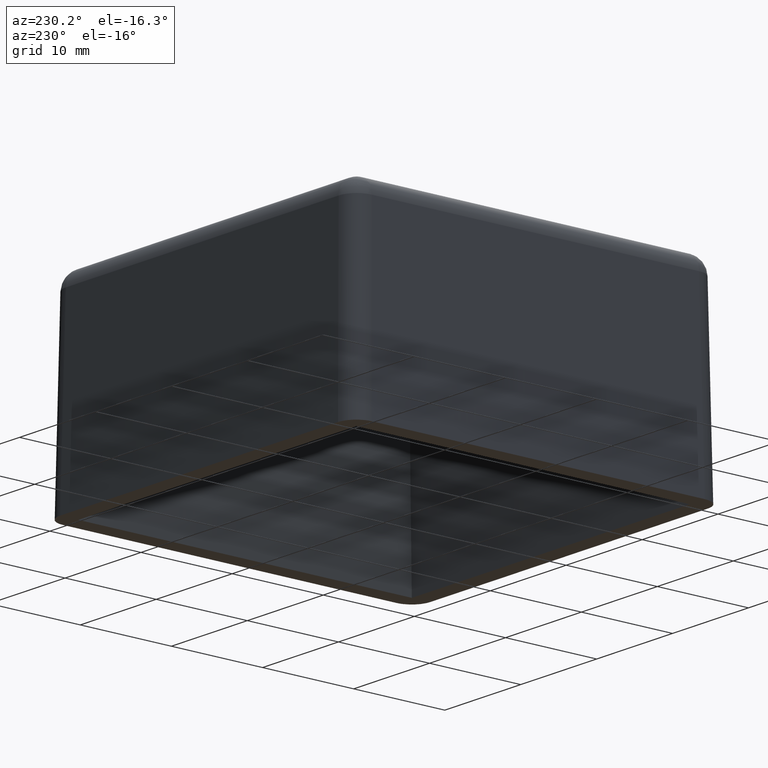
[diagram: clean part render]
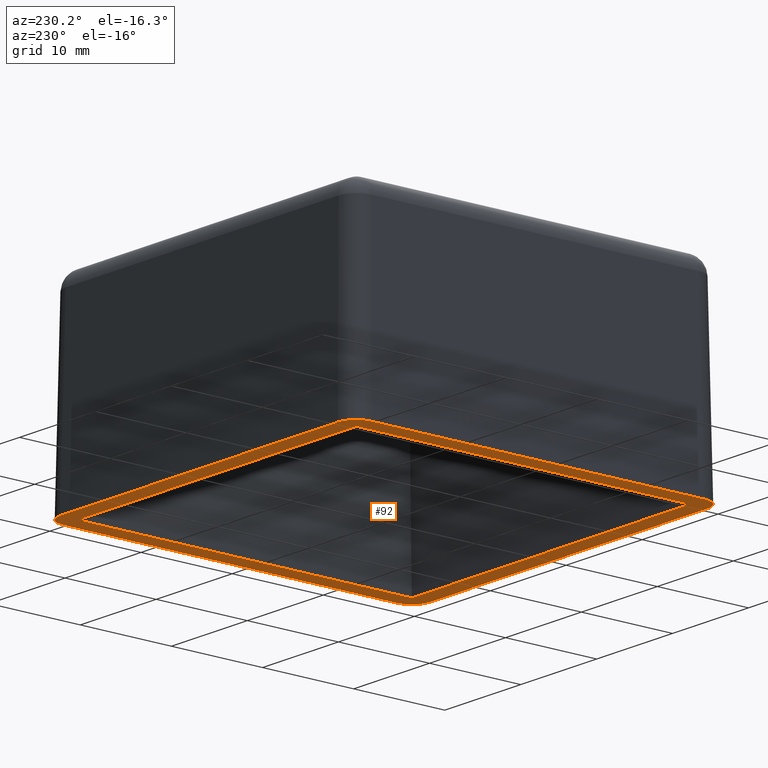
[diagram: same view with one face highlighted and labeled with its STEP entity id]
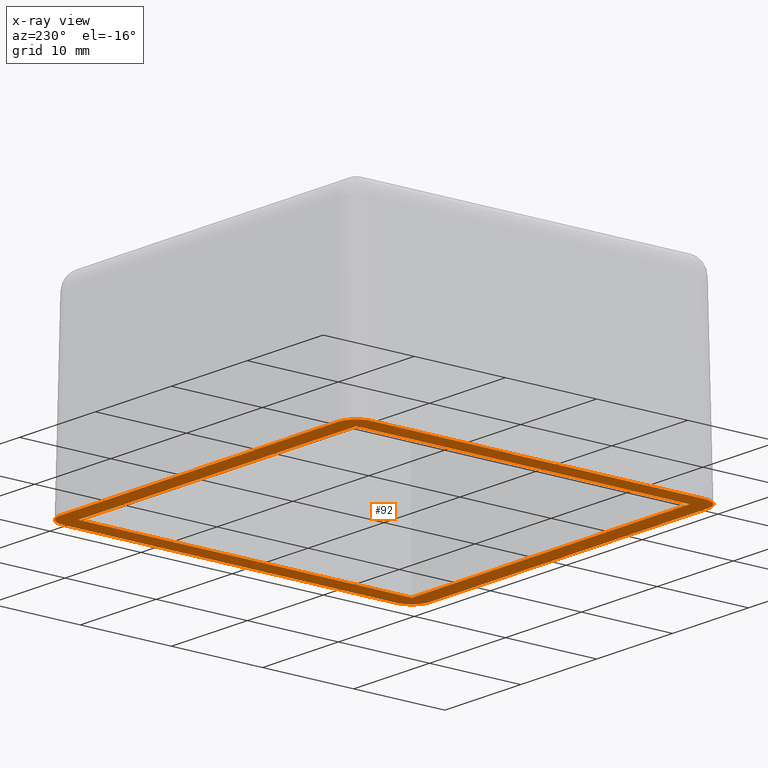
[diagram: x-ray of the same camera — body ghosted, the highlighted face saturated]
A machine part, auxiliary view. The second image highlights one B-rep face of the part: STEP entity #92.
The next image is the same camera in x-ray: the body ghosted, the highlighted face saturated — about 0% of this face is hidden behind the body in this view.
In plain terms, the highlighted planar face has unit normal (0, 0, 1).
Its self-contained STEP definition (entity closure, byte-faithful):
#92 = ADVANCED_FACE( '', ( #204, #205 ), #206, .F. );
#204 = FACE_BOUND( '', #389, .T. );
#205 = FACE_OUTER_BOUND( '', #390, .T. );
#206 = PLANE( '', #391 );
#389 = EDGE_LOOP( '', ( #726, #727, #728, #729 ) );
#390 = EDGE_LOOP( '', ( #730, #731, #732, #733, #734, #735, #736, #737 ) );
#391 = AXIS2_PLACEMENT_3D( '', #738, #739, #740 );
#726 = ORIENTED_EDGE( '', *, *, #1364, .T. );
#727 = ORIENTED_EDGE( '', *, *, #1365, .T. );
#728 = ORIENTED_EDGE( '', *, *, #1366, .T. );
#729 = ORIENTED_EDGE( '', *, *, #1367, .T. );
#730 = ORIENTED_EDGE( '', *, *, #1327, .F. );
#731 = ORIENTED_EDGE( '', *, *, #1349, .T. );
#732 = ORIENTED_EDGE( '', *, *, #1352, .F. );
#733 = ORIENTED_EDGE( '', *, *, #1361, .T. );
#734 = ORIENTED_EDGE( '', *, *, #1363, .F. );
#735 = ORIENTED_EDGE( '', *, *, #1368, .T. );
#736 = ORIENTED_EDGE( '', *, *, #1369, .F. );
#737 = ORIENTED_EDGE( '', *, *, #1370, .T. );
#738 = CARTESIAN_POINT( '', ( -20.3000000000000, -20.3000000000000, 0.000000000000000 ) );
#739 = DIRECTION( '', ( 0.000000000000000, 0.000000000000000, 1.00000000000000 ) );
#740 = DIRECTION( '', ( 0.000000000000000, -1.00000000000000, 0.000000000000000 ) );
#1327 = EDGE_CURVE( '', #1593, #1588, #1595, .F. );
#1349 = EDGE_CURVE( '', #1593, #1629, #1631, .F. );
#1352 = EDGE_CURVE( '', #1634, #1629, #1636, .F. );
#1361 = EDGE_CURVE( '', #1634, #1646, #1648, .F. );
#1363 = EDGE_CURVE( '', #1649, #1646, #1651, .F. );
#1364 = EDGE_CURVE( '', #1652, #1653, #1654, .F. );
#1365 = EDGE_CURVE( '', #1653, #1655, #1656, .F. );
#1366 = EDGE_CURVE( '', #1655, #1657, #1658, .F. );
#1367 = EDGE_CURVE( '', #1657, #1652, #1659, .F. );
#1368 = EDGE_CURVE( '', #1649, #1660, #1661, .F. );
#1369 = EDGE_CURVE( '', #1662, #1660, #1663, .F. );
#1370 = EDGE_CURVE( '', #1662, #1588, #1664, .F. );
#1588 = VERTEX_POINT( '', #2058 );
#1593 = VERTEX_POINT( '', #2065 );
#1595 = LINE( '', #2068, #2069 );
#1629 = VERTEX_POINT( '', #2173 );
#1631 = ELLIPSE( '', #2176, 2.00060926578210, 2.00000000000000 );
#1634 = VERTEX_POINT( '', #2180 );
#1636 = LINE( '', #2183, #2184 );
#1646 = VERTEX_POINT( '', #2195 );
#1648 = ELLIPSE( '', #2198, 2.00060926578210, 2.00000000000000 );
#1649 = VERTEX_POINT( '', #2199 );
#1651 = LINE( '', #2202, #2203 );
#1652 = VERTEX_POINT( '', #2204 );
#1653 = VERTEX_POINT( '', #2205 );
#1654 = LINE( '', #2206, #2207 );
#1655 = VERTEX_POINT( '', #2208 );
#1656 = LINE( '', #2209, #2210 );
#1657 = VERTEX_POINT( '', #2211 );
#1658 = LINE( '', #2212, #2213 );
#1659 = LINE( '', #2214, #2215 );
#1660 = VERTEX_POINT( '', #2216 );
#1661 = ELLIPSE( '', #2217, 2.00060926578210, 2.00000000000000 );
#1662 = VERTEX_POINT( '', #2218 );
#1663 = LINE( '', #2219, #2220 );
#1664 = ELLIPSE( '', #2221, 2.00060926578210, 2.00000000000000 );
#2058 = CARTESIAN_POINT( '', ( -20.3000000000000, -18.3003046096872, 0.000000000000000 ) );
#2065 = CARTESIAN_POINT( '', ( -20.3000000000000, 18.3003046096872, 0.000000000000000 ) );
#2068 = CARTESIAN_POINT( '', ( -20.3000000000000, -20.3000000000000, 0.000000000000000 ) );
#2069 = VECTOR( '', #2553, 1000.00000000000 );
#2173 = CARTESIAN_POINT( '', ( -18.3003046096872, 20.3000000000000, 0.000000000000000 ) );
#2176 = AXIS2_PLACEMENT_3D( '', #2566, #2567, #2568 );
#2180 = CARTESIAN_POINT( '', ( 18.3003046096872, 20.3000000000000, 0.000000000000000 ) );
#2183 = CARTESIAN_POINT( '', ( -20.3000000000000, 20.3000000000000, 0.000000000000000 ) );
#2184 = VECTOR( '', #2571, 1000.00000000000 );
#2195 = CARTESIAN_POINT( '', ( 20.3000000000000, 18.3003046096872, 0.000000000000000 ) );
#2198 = AXIS2_PLACEMENT_3D( '', #2592, #2593, #2594 );
#2199 = CARTESIAN_POINT( '', ( 20.3000000000000, -18.3003046096872, 0.000000000000000 ) );
#2202 = CARTESIAN_POINT( '', ( 20.3000000000000, -20.3000000000000, 0.000000000000000 ) );
#2203 = VECTOR( '', #2596, 1000.00000000000 );
#2204 = CARTESIAN_POINT( '', ( 18.3000000000000, 18.3000000000000, 0.000000000000000 ) );
#2205 = CARTESIAN_POINT( '', ( -18.3000000000000, 18.3000000000000, 0.000000000000000 ) );
#2206 = CARTESIAN_POINT( '', ( -18.3000000000000, 18.3000000000000, 0.000000000000000 ) );
#2207 = VECTOR( '', #2597, 1000.00000000000 );
#2208 = CARTESIAN_POINT( '', ( -18.3000000000000, -18.3000000000000, 0.000000000000000 ) );
#2209 = CARTESIAN_POINT( '', ( -18.3000000000000, -18.3000000000000, 0.000000000000000 ) );
#2210 = VECTOR( '', #2598, 1000.00000000000 );
#2211 = CARTESIAN_POINT( '', ( 18.3000000000000, -18.3000000000000, 0.000000000000000 ) );
#2212 = CARTESIAN_POINT( '', ( -18.3000000000000, -18.3000000000000, 0.000000000000000 ) );
#2213 = VECTOR( '', #2599, 1000.00000000000 );
#2214 = CARTESIAN_POINT( '', ( 18.3000000000000, -18.3000000000000, 0.000000000000000 ) );
#2215 = VECTOR( '', #2600, 1000.00000000000 );
#2216 = CARTESIAN_POINT( '', ( 18.3003046096872, -20.3000000000000, 0.000000000000000 ) );
#2217 = AXIS2_PLACEMENT_3D( '', #2601, #2602, #2603 );
#2218 = CARTESIAN_POINT( '', ( -18.3003046096872, -20.3000000000000, 0.000000000000000 ) );
#2219 = CARTESIAN_POINT( '', ( -20.3000000000000, -20.3000000000000, 0.000000000000000 ) );
#2220 = VECTOR( '', #2604, 1000.00000000000 );
#2221 = AXIS2_PLACEMENT_3D( '', #2605, #2606, #2607 );
#2553 = DIRECTION( '', ( 0.000000000000000, 1.00000000000000, 0.000000000000000 ) );
#2566 = CARTESIAN_POINT( '', ( -18.2996953439122, 18.2996953439122, 0.000000000000000 ) );
#2567 = DIRECTION( '', ( 0.000000000000000, 0.000000000000000, 1.00000000000000 ) );
#2568 = DIRECTION( '', ( -0.707106781186547, 0.707106781186547, 0.000000000000000 ) );
#2571 = DIRECTION( '', ( 1.00000000000000, 0.000000000000000, 0.000000000000000 ) );
#2592 = CARTESIAN_POINT( '', ( 18.2996953439122, 18.2996953439122, 0.000000000000000 ) );
#2593 = DIRECTION( '', ( 0.000000000000000, 0.000000000000000, 1.00000000000000 ) );
#2594 = DIRECTION( '', ( 0.707106781186547, 0.707106781186547, 0.000000000000000 ) );
#2596 = DIRECTION( '', ( 0.000000000000000, -1.00000000000000, 0.000000000000000 ) );
#2597 = DIRECTION( '', ( 1.00000000000000, 0.000000000000000, 0.000000000000000 ) );
#2598 = DIRECTION( '', ( 0.000000000000000, 1.00000000000000, 0.000000000000000 ) );
#2599 = DIRECTION( '', ( -1.00000000000000, 0.000000000000000, 0.000000000000000 ) );
#2600 = DIRECTION( '', ( 0.000000000000000, -1.00000000000000, 0.000000000000000 ) );
#2601 = CARTESIAN_POINT( '', ( 18.2996953439122, -18.2996953439122, 0.000000000000000 ) );
#2602 = DIRECTION( '', ( 0.000000000000000, 0.000000000000000, 1.00000000000000 ) );
#2603 = DIRECTION( '', ( 0.707106781186547, -0.707106781186547, 0.000000000000000 ) );
#2604 = DIRECTION( '', ( -1.00000000000000, 0.000000000000000, 0.000000000000000 ) );
#2605 = CARTESIAN_POINT( '', ( -18.2996953439122, -18.2996953439122, 0.000000000000000 ) );
#2606 = DIRECTION( '', ( 0.000000000000000, 0.000000000000000, 1.00000000000000 ) );
#2607 = DIRECTION( '', ( -0.707106781186547, -0.707106781186547, 0.000000000000000 ) );